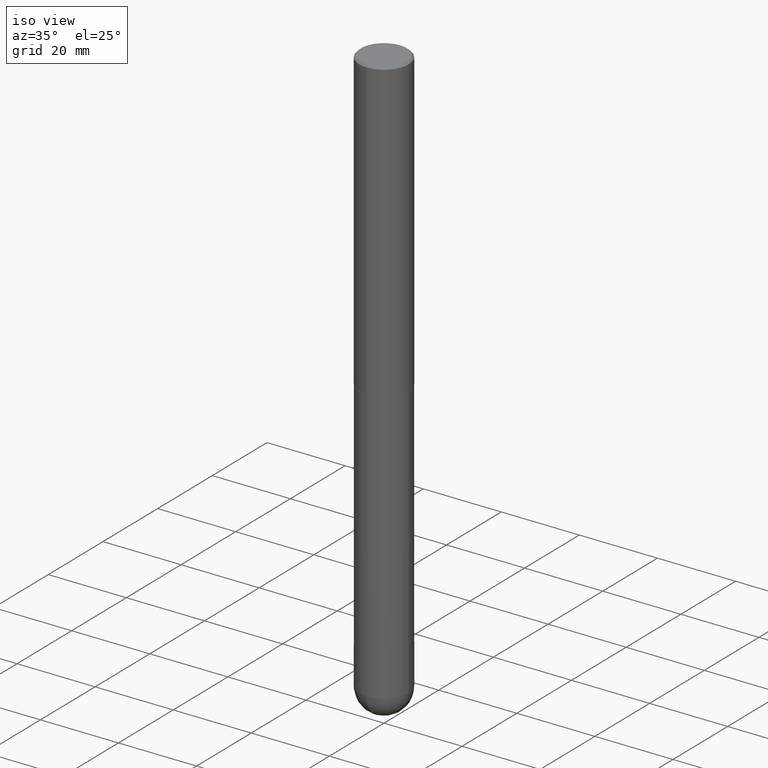
[diagram: clean part render]
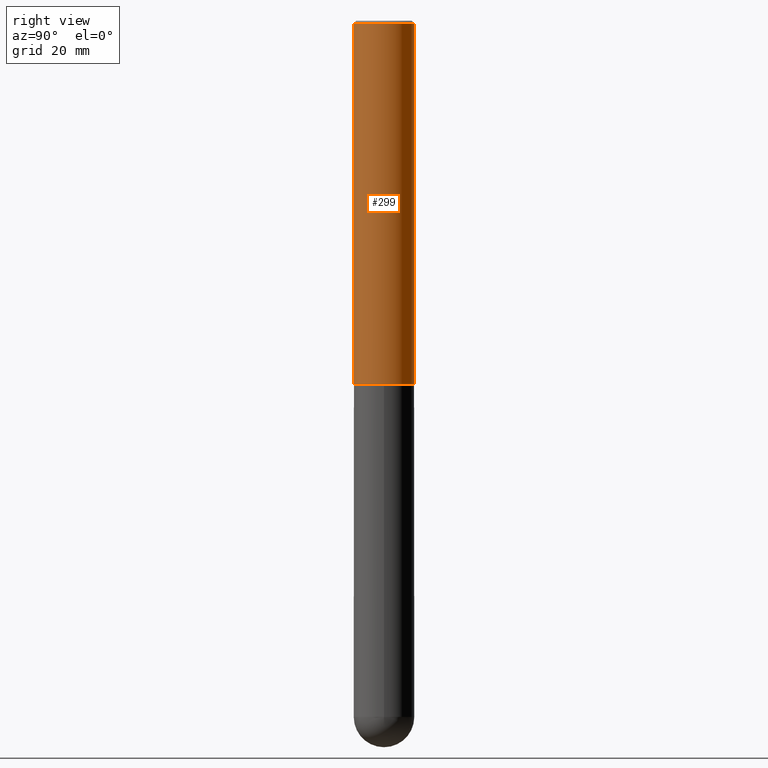
[diagram: tour spotlight — one face highlighted and labeled with its STEP entity id]
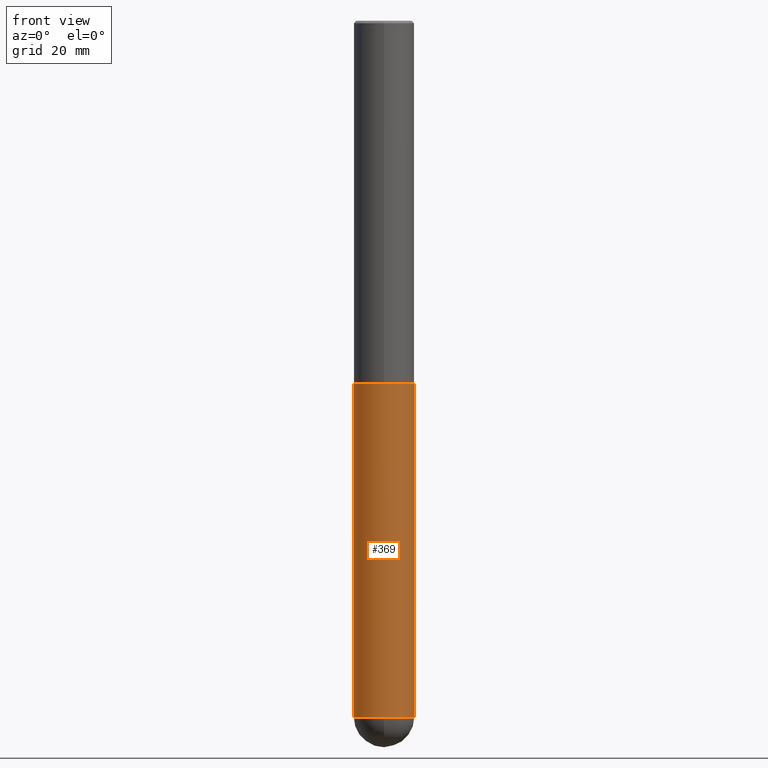
[diagram: tour spotlight — one face highlighted and labeled with its STEP entity id]
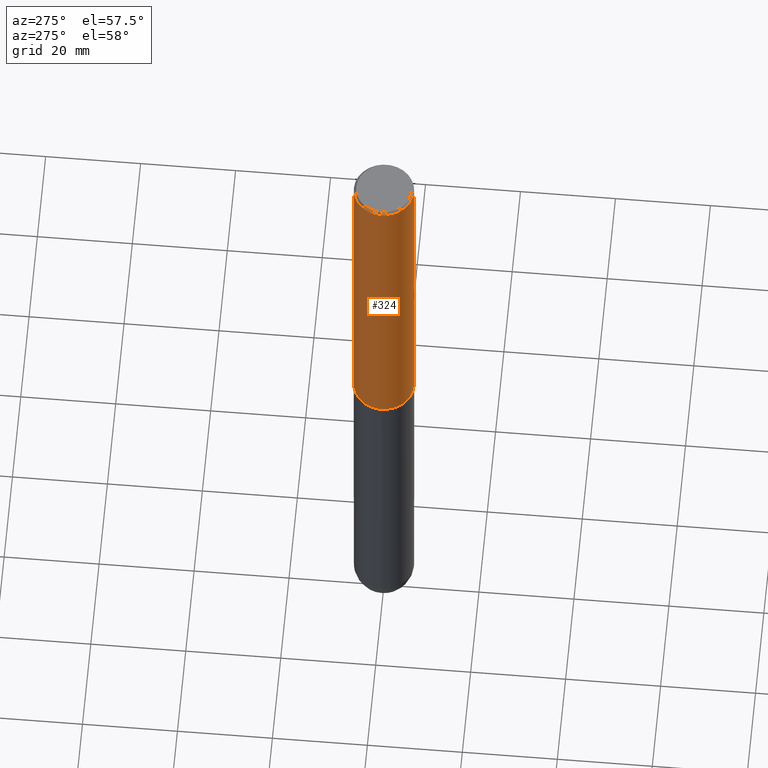
[diagram: tour spotlight — one face highlighted and labeled with its STEP entity id]
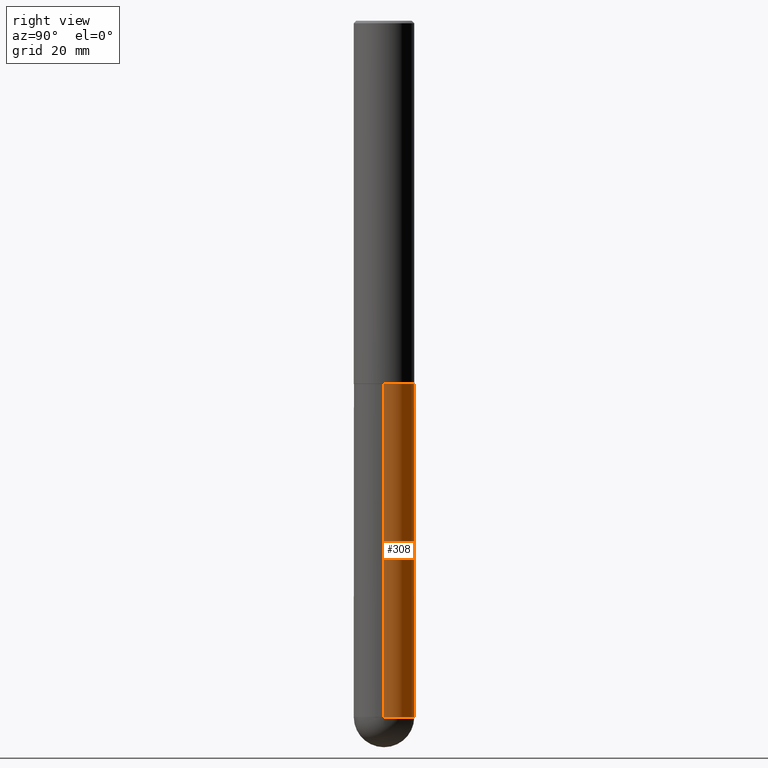
[diagram: tour spotlight — one face highlighted and labeled with its STEP entity id]
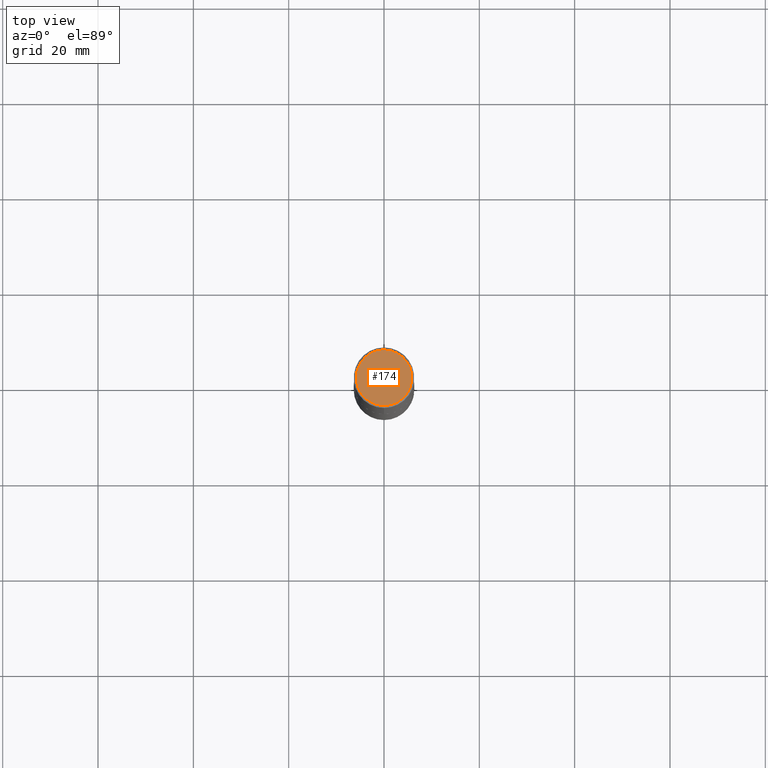
[diagram: tour spotlight — one face highlighted and labeled with its STEP entity id]
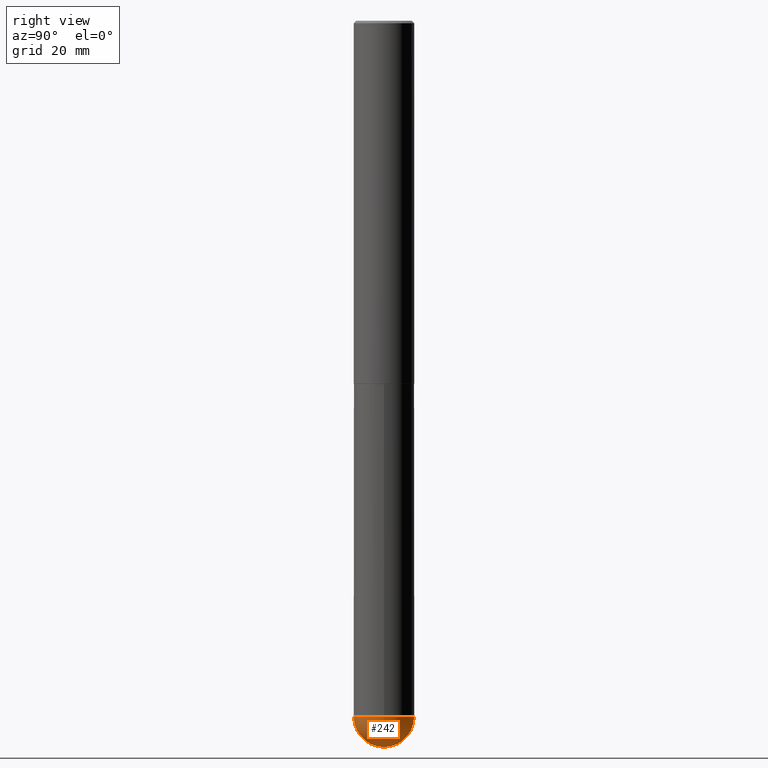
[diagram: tour spotlight — one face highlighted and labeled with its STEP entity id]
A machine part: a face-by-face anatomy tour. The part has 13 B-rep faces; the first image is the clean iso view, then the 6 largest visible faces are spotlighted one at a time (largest first), each with its STEP entity span.

Face 1 — right view, entity #299. In plain terms, the highlighted cylindrical surface (edge-blend (fillet) strip) has radius 6.35 mm, axis along (-0, 0, 1).
Definition (entity closure, byte-faithful):
#9 = VERTEX_POINT ( 'NONE', #234 ) ;
#15 = DIRECTION ( 'NONE',  ( -2.445032266171692161E-29, 3.492106488988713156E-15, 1.000000000000000000 ) ) ;
#32 = LINE ( 'NONE', #95, #240 ) ;
#38 = DIRECTION ( 'NONE',  ( -6.982962677686265922E-15, -1.000000000000000000, 4.370956789862815627E-15 ) ) ;
#49 = CIRCLE ( 'NONE', #93, 0.2500000000000003331 ) ;
#56 = CARTESIAN_POINT ( 'NONE',  ( -1.745740669421567664E-15, -0.2500000000000001665, 8.730266222471788808E-16 ) ) ;
#71 = DIRECTION ( 'NONE',  ( -6.982962677686265922E-15, -1.000000000000000000, 3.500180241882337261E-15 ) ) ;
#76 = DIRECTION ( 'NONE',  ( -2.445032266171691881E-29, 3.492106488988713156E-15, 1.000000000000000000 ) ) ;
#91 = DIRECTION ( 'NONE',  ( -2.445032266171691881E-29, 3.492106488988713156E-15, 1.000000000000000000 ) ) ;
#93 = AXIS2_PLACEMENT_3D ( 'NONE', #203, #322, #38 ) ;
#95 = CARTESIAN_POINT ( 'NONE',  ( 1.776356839400251254E-15, 0.2500000000000001665, -8.730266222471788808E-16 ) ) ;
#102 = VERTEX_POINT ( 'NONE', #159 ) ;
#114 = VECTOR ( 'NONE', #15, 39.37007874015748143 ) ;
#130 = DIRECTION ( 'NONE',  ( -2.445032266171692161E-29, 3.492106488988713156E-15, 1.000000000000000000 ) ) ;
#135 = ORIENTED_EDGE ( 'NONE', *, *, #279, .T. ) ;
#152 = ORIENTED_EDGE ( 'NONE', *, *, #270, .F. ) ;
#159 = CARTESIAN_POINT ( 'NONE',  ( 1.745740669421566875E-15, 0.2499999999999999167, -0.02000000000000093023 ) ) ;
#169 = CYLINDRICAL_SURFACE ( 'NONE', #215, 0.2500000000000001665 ) ;
#175 = DIRECTION ( 'NONE',  ( -6.982962677686265922E-15, -1.000000000000000000, 3.492106488988713156E-15 ) ) ;
#203 = CARTESIAN_POINT ( 'NONE',  ( 7.332651766248905611E-29, -1.047282736047715268E-14, -2.999000000000000554 ) ) ;
#215 = AXIS2_PLACEMENT_3D ( 'NONE', #388, #76, #175 ) ;
#230 = AXIS2_PLACEMENT_3D ( 'NONE', #377, #91, #71 ) ;
#234 = CARTESIAN_POINT ( 'NONE',  ( 1.776356839400289119E-15, 0.2499999999999898415, -2.999000000000001442 ) ) ;
#240 = VECTOR ( 'NONE', #130, 39.37007874015748143 ) ;
#257 = EDGE_LOOP ( 'NONE', ( #135, #334, #152, #394 ) ) ;
#263 = CIRCLE ( 'NONE', #230, 0.2500000000000000000 ) ;
#269 = FACE_OUTER_BOUND ( 'NONE', #257, .T. ) ;
#270 = EDGE_CURVE ( 'NONE', #315, #102, #263, .T. ) ;
#279 = EDGE_CURVE ( 'NONE', #399, #9, #49, .T. ) ;
#299 = ADVANCED_FACE ( 'NONE', ( #269 ), #169, .T. ) ;
#315 = VERTEX_POINT ( 'NONE', #361 ) ;
#322 = DIRECTION ( 'NONE',  ( -2.445032266171691881E-29, 3.492106488988713156E-15, 1.000000000000000000 ) ) ;
#334 = ORIENTED_EDGE ( 'NONE', *, *, #390, .T. ) ;
#337 = LINE ( 'NONE', #56, #114 ) ;
#361 = CARTESIAN_POINT ( 'NONE',  ( -1.715124499442882299E-15, -0.2500000000000000555, -0.01999999999999918163 ) ) ;
#377 = CARTESIAN_POINT ( 'NONE',  ( 4.890064532343397284E-31, -6.984212977977444358E-17, -0.02000000000000005593 ) ) ;
#388 = CARTESIAN_POINT ( 'NONE',  ( 0.000000000000000000, 0.000000000000000000, 0.000000000000000000 ) ) ;
#390 = EDGE_CURVE ( 'NONE', #9, #102, #32, .T. ) ;
#393 = EDGE_CURVE ( 'NONE', #399, #315, #337, .T. ) ;
#394 = ORIENTED_EDGE ( 'NONE', *, *, #393, .F. ) ;
#395 = CARTESIAN_POINT ( 'NONE',  ( -1.745740669421495680E-15, -0.2500000000000108247, -2.998999999999999222 ) ) ;
#399 = VERTEX_POINT ( 'NONE', #395 ) ;

Face 2 — front view, entity #369. In plain terms, the highlighted cylindrical surface (edge-blend (fillet) strip) has radius 6.35 mm, axis along (-0, 0, 1).
Definition (entity closure, byte-faithful):
#51 = DIRECTION ( 'NONE',  ( 1.000000000000000000, -6.982962677686266711E-15, 4.876176775795935793E-29 ) ) ;
#54 = EDGE_CURVE ( 'NONE', #195, #268, #305, .T. ) ;
#64 = AXIS2_PLACEMENT_3D ( 'NONE', #283, #92, #87 ) ;
#80 = DIRECTION ( 'NONE',  ( -2.445468806185136597E-29, 3.491481338843145583E-15, 1.000000000000000000 ) ) ;
#87 = DIRECTION ( 'NONE',  ( 1.000000000000000000, -6.982962677686262766E-15, 0.000000000000000000 ) ) ;
#92 = DIRECTION ( 'NONE',  ( -2.445468806185136597E-29, 3.491481338843145583E-15, 1.000000000000000000 ) ) ;
#107 = DIRECTION ( 'NONE',  ( -2.445468806185136597E-29, 3.491481338843145583E-15, 1.000000000000000000 ) ) ;
#109 = VERTEX_POINT ( 'NONE', #409 ) ;
#110 = CARTESIAN_POINT ( 'NONE',  ( 0.2500000000000000000, -1.745740669421566678E-15, 1.219044193948983948E-29 ) ) ;
#131 = EDGE_CURVE ( 'NONE', #268, #109, #332, .T. ) ;
#136 = CARTESIAN_POINT ( 'NONE',  ( 0.000000000000000000, 0.000000000000000000, 0.000000000000000000 ) ) ;
#139 = AXIS2_PLACEMENT_3D ( 'NONE', #391, #80, #207 ) ;
#154 = AXIS2_PLACEMENT_3D ( 'NONE', #136, #261, #51 ) ;
#162 = CYLINDRICAL_SURFACE ( 'NONE', #154, 0.2500000000000000000 ) ;
#173 = LINE ( 'NONE', #304, #314 ) ;
#178 = EDGE_CURVE ( 'NONE', #195, #312, #173, .T. ) ;
#193 = ORIENTED_EDGE ( 'NONE', *, *, #54, .T. ) ;
#195 = VERTEX_POINT ( 'NONE', #408 ) ;
#198 = ORIENTED_EDGE ( 'NONE', *, *, #290, .F. ) ;
#204 = DIRECTION ( 'NONE',  ( 1.000000000000000000, -6.982962677686262766E-15, 0.000000000000000000 ) ) ;
#205 = FACE_OUTER_BOUND ( 'NONE', #298, .T. ) ;
#207 = DIRECTION ( 'NONE',  ( 1.000000000000000000, -6.982962677686262766E-15, 0.000000000000000000 ) ) ;
#211 = CARTESIAN_POINT ( 'NONE',  ( -0.2500000000000000000, -1.349887401803851318E-14, -3.000000000000000444 ) ) ;
#220 = EDGE_CURVE ( 'NONE', #109, #344, #291, .T. ) ;
#229 = CARTESIAN_POINT ( 'NONE',  ( -1.776356839400113597E-15, -0.2500000000000206501, -5.750000000000000000 ) ) ;
#231 = DIRECTION ( 'NONE',  ( -2.445468806185136877E-29, 3.491481338843145188E-15, 1.000000000000000000 ) ) ;
#244 = CIRCLE ( 'NONE', #139, 0.2500000000000000000 ) ;
#252 = ORIENTED_EDGE ( 'NONE', *, *, #220, .T. ) ;
#254 = VECTOR ( 'NONE', #231, 39.37007874015748143 ) ;
#261 = DIRECTION ( 'NONE',  ( -2.445468806185136597E-29, 3.491481338843145583E-15, 1.000000000000000000 ) ) ;
#264 = ORIENTED_EDGE ( 'NONE', *, *, #178, .F. ) ;
#266 = DIRECTION ( 'NONE',  ( -2.445468806185136877E-29, 3.491481338843145188E-15, 1.000000000000000000 ) ) ;
#268 = VERTEX_POINT ( 'NONE', #229 ) ;
#283 = CARTESIAN_POINT ( 'NONE',  ( 1.406144563556453767E-28, -2.007601769834809252E-14, -5.750000000000000888 ) ) ;
#290 = EDGE_CURVE ( 'NONE', #312, #344, #244, .T. ) ;
#291 = LINE ( 'NONE', #110, #254 ) ;
#298 = EDGE_LOOP ( 'NONE', ( #264, #193, #403, #252, #198 ) ) ;
#304 = CARTESIAN_POINT ( 'NONE',  ( -0.2500000000000000000, 1.776356839400250465E-15, -1.229733772563726445E-29 ) ) ;
#305 = CIRCLE ( 'NONE', #64, 0.2500000000000000000 ) ;
#312 = VERTEX_POINT ( 'NONE', #211 ) ;
#314 = VECTOR ( 'NONE', #266, 39.37007874015748143 ) ;
#321 = CARTESIAN_POINT ( 'NONE',  ( 0.2500000000000000000, -1.222018468595100303E-14, -3.000000000000000444 ) ) ;
#327 = CARTESIAN_POINT ( 'NONE',  ( 1.406144563556453767E-28, -2.007601769834809252E-14, -5.750000000000000888 ) ) ;
#332 = CIRCLE ( 'NONE', #402, 0.2500000000000000000 ) ;
#344 = VERTEX_POINT ( 'NONE', #321 ) ;
#369 = ADVANCED_FACE ( 'NONE', ( #205 ), #162, .T. ) ;
#391 = CARTESIAN_POINT ( 'NONE',  ( 7.336406418555409790E-29, -1.047444401652943635E-14, -3.000000000000000444 ) ) ;
#402 = AXIS2_PLACEMENT_3D ( 'NONE', #327, #107, #204 ) ;
#403 = ORIENTED_EDGE ( 'NONE', *, *, #131, .T. ) ;
#408 = CARTESIAN_POINT ( 'NONE',  ( -0.2500000000000000000, -1.349887401803851318E-14, -5.750000000000000888 ) ) ;
#409 = CARTESIAN_POINT ( 'NONE',  ( 0.2500000000000000000, -1.702097152686033033E-14, -5.750000000000000888 ) ) ;

Face 3 — auxiliary view, entity #324. In plain terms, the highlighted cylindrical surface (edge-blend (fillet) strip) has radius 6.35 mm, axis along (-0, 0, 1).
Definition (entity closure, byte-faithful):
#9 = VERTEX_POINT ( 'NONE', #234 ) ;
#10 = DIRECTION ( 'NONE',  ( -2.445032266171691881E-29, 3.492106488988713156E-15, 1.000000000000000000 ) ) ;
#14 = ORIENTED_EDGE ( 'NONE', *, *, #390, .F. ) ;
#15 = DIRECTION ( 'NONE',  ( -2.445032266171692161E-29, 3.492106488988713156E-15, 1.000000000000000000 ) ) ;
#17 = CARTESIAN_POINT ( 'NONE',  ( 0.000000000000000000, 0.000000000000000000, 0.000000000000000000 ) ) ;
#32 = LINE ( 'NONE', #95, #240 ) ;
#41 = AXIS2_PLACEMENT_3D ( 'NONE', #357, #10, #239 ) ;
#47 = CARTESIAN_POINT ( 'NONE',  ( 7.332651766248905611E-29, -1.047282736047715268E-14, -2.999000000000000554 ) ) ;
#56 = CARTESIAN_POINT ( 'NONE',  ( -1.745740669421567664E-15, -0.2500000000000001665, 8.730266222471788808E-16 ) ) ;
#95 = CARTESIAN_POINT ( 'NONE',  ( 1.776356839400251254E-15, 0.2500000000000001665, -8.730266222471788808E-16 ) ) ;
#102 = VERTEX_POINT ( 'NONE', #159 ) ;
#105 = CIRCLE ( 'NONE', #288, 0.2500000000000003331 ) ;
#114 = VECTOR ( 'NONE', #15, 39.37007874015748143 ) ;
#120 = EDGE_LOOP ( 'NONE', ( #14, #140, #292, #191 ) ) ;
#130 = DIRECTION ( 'NONE',  ( -2.445032266171692161E-29, 3.492106488988713156E-15, 1.000000000000000000 ) ) ;
#140 = ORIENTED_EDGE ( 'NONE', *, *, #318, .T. ) ;
#146 = DIRECTION ( 'NONE',  ( -2.445032266171691881E-29, 3.492106488988713156E-15, 1.000000000000000000 ) ) ;
#159 = CARTESIAN_POINT ( 'NONE',  ( 1.745740669421566875E-15, 0.2499999999999999167, -0.02000000000000093023 ) ) ;
#172 = DIRECTION ( 'NONE',  ( -6.982962677686265922E-15, -1.000000000000000000, 4.370956789862815627E-15 ) ) ;
#183 = AXIS2_PLACEMENT_3D ( 'NONE', #17, #146, #262 ) ;
#191 = ORIENTED_EDGE ( 'NONE', *, *, #237, .F. ) ;
#234 = CARTESIAN_POINT ( 'NONE',  ( 1.776356839400289119E-15, 0.2499999999999898415, -2.999000000000001442 ) ) ;
#237 = EDGE_CURVE ( 'NONE', #102, #315, #372, .T. ) ;
#239 = DIRECTION ( 'NONE',  ( -6.982962677686265922E-15, -1.000000000000000000, 3.500180241882337261E-15 ) ) ;
#240 = VECTOR ( 'NONE', #130, 39.37007874015748143 ) ;
#262 = DIRECTION ( 'NONE',  ( -6.982962677686265922E-15, -1.000000000000000000, 3.492106488988713156E-15 ) ) ;
#288 = AXIS2_PLACEMENT_3D ( 'NONE', #47, #303, #172 ) ;
#292 = ORIENTED_EDGE ( 'NONE', *, *, #393, .T. ) ;
#303 = DIRECTION ( 'NONE',  ( -2.445032266171691881E-29, 3.492106488988713156E-15, 1.000000000000000000 ) ) ;
#315 = VERTEX_POINT ( 'NONE', #361 ) ;
#318 = EDGE_CURVE ( 'NONE', #9, #399, #105, .T. ) ;
#324 = ADVANCED_FACE ( 'NONE', ( #386 ), #330, .T. ) ;
#330 = CYLINDRICAL_SURFACE ( 'NONE', #183, 0.2500000000000001665 ) ;
#337 = LINE ( 'NONE', #56, #114 ) ;
#357 = CARTESIAN_POINT ( 'NONE',  ( 4.890064532343397284E-31, -6.984212977977444358E-17, -0.02000000000000005593 ) ) ;
#361 = CARTESIAN_POINT ( 'NONE',  ( -1.715124499442882299E-15, -0.2500000000000000555, -0.01999999999999918163 ) ) ;
#372 = CIRCLE ( 'NONE', #41, 0.2500000000000000000 ) ;
#386 = FACE_OUTER_BOUND ( 'NONE', #120, .T. ) ;
#390 = EDGE_CURVE ( 'NONE', #9, #102, #32, .T. ) ;
#393 = EDGE_CURVE ( 'NONE', #399, #315, #337, .T. ) ;
#395 = CARTESIAN_POINT ( 'NONE',  ( -1.745740669421495680E-15, -0.2500000000000108247, -2.998999999999999222 ) ) ;
#399 = VERTEX_POINT ( 'NONE', #395 ) ;

Face 4 — right view, entity #308. In plain terms, the highlighted cylindrical surface (edge-blend (fillet) strip) has radius 6.35 mm, axis along (-0, 0, 1).
Definition (entity closure, byte-faithful):
#2 = DIRECTION ( 'NONE',  ( 1.000000000000000000, -6.982962677686262766E-15, 0.000000000000000000 ) ) ;
#16 = DIRECTION ( 'NONE',  ( 1.000000000000000000, -6.982962677686266711E-15, 4.876176775795935793E-29 ) ) ;
#24 = CIRCLE ( 'NONE', #326, 0.2500000000000000000 ) ;
#26 = EDGE_CURVE ( 'NONE', #344, #312, #53, .T. ) ;
#40 = DIRECTION ( 'NONE',  ( -2.445468806185136597E-29, 3.491481338843145583E-15, 1.000000000000000000 ) ) ;
#53 = CIRCLE ( 'NONE', #210, 0.2500000000000000000 ) ;
#65 = ORIENTED_EDGE ( 'NONE', *, *, #220, .F. ) ;
#77 = AXIS2_PLACEMENT_3D ( 'NONE', #213, #165, #16 ) ;
#88 = ORIENTED_EDGE ( 'NONE', *, *, #366, .T. ) ;
#90 = ORIENTED_EDGE ( 'NONE', *, *, #178, .T. ) ;
#109 = VERTEX_POINT ( 'NONE', #409 ) ;
#110 = CARTESIAN_POINT ( 'NONE',  ( 0.2500000000000000000, -1.745740669421566678E-15, 1.219044193948983948E-29 ) ) ;
#111 = FACE_OUTER_BOUND ( 'NONE', #325, .T. ) ;
#141 = CYLINDRICAL_SURFACE ( 'NONE', #77, 0.2500000000000000000 ) ;
#147 = CARTESIAN_POINT ( 'NONE',  ( 1.745740669421707884E-15, 0.2499999999999800160, -5.750000000000001776 ) ) ;
#158 = CARTESIAN_POINT ( 'NONE',  ( 1.406144563556453767E-28, -2.007601769834809252E-14, -5.750000000000000888 ) ) ;
#165 = DIRECTION ( 'NONE',  ( -2.445468806185136597E-29, 3.491481338843145583E-15, 1.000000000000000000 ) ) ;
#173 = LINE ( 'NONE', #304, #314 ) ;
#178 = EDGE_CURVE ( 'NONE', #195, #312, #173, .T. ) ;
#194 = EDGE_CURVE ( 'NONE', #109, #397, #24, .T. ) ;
#195 = VERTEX_POINT ( 'NONE', #408 ) ;
#210 = AXIS2_PLACEMENT_3D ( 'NONE', #346, #378, #248 ) ;
#211 = CARTESIAN_POINT ( 'NONE',  ( -0.2500000000000000000, -1.349887401803851318E-14, -3.000000000000000444 ) ) ;
#213 = CARTESIAN_POINT ( 'NONE',  ( 0.000000000000000000, 0.000000000000000000, 0.000000000000000000 ) ) ;
#220 = EDGE_CURVE ( 'NONE', #109, #344, #291, .T. ) ;
#231 = DIRECTION ( 'NONE',  ( -2.445468806185136877E-29, 3.491481338843145188E-15, 1.000000000000000000 ) ) ;
#232 = CIRCLE ( 'NONE', #333, 0.2500000000000000000 ) ;
#248 = DIRECTION ( 'NONE',  ( 1.000000000000000000, -6.982962677686262766E-15, 0.000000000000000000 ) ) ;
#254 = VECTOR ( 'NONE', #231, 39.37007874015748143 ) ;
#266 = DIRECTION ( 'NONE',  ( -2.445468806185136877E-29, 3.491481338843145188E-15, 1.000000000000000000 ) ) ;
#273 = ORIENTED_EDGE ( 'NONE', *, *, #26, .F. ) ;
#285 = DIRECTION ( 'NONE',  ( 1.000000000000000000, -6.982962677686262766E-15, 0.000000000000000000 ) ) ;
#291 = LINE ( 'NONE', #110, #254 ) ;
#304 = CARTESIAN_POINT ( 'NONE',  ( -0.2500000000000000000, 1.776356839400250465E-15, -1.229733772563726445E-29 ) ) ;
#308 = ADVANCED_FACE ( 'NONE', ( #111 ), #141, .T. ) ;
#312 = VERTEX_POINT ( 'NONE', #211 ) ;
#314 = VECTOR ( 'NONE', #266, 39.37007874015748143 ) ;
#321 = CARTESIAN_POINT ( 'NONE',  ( 0.2500000000000000000, -1.222018468595100303E-14, -3.000000000000000444 ) ) ;
#325 = EDGE_LOOP ( 'NONE', ( #88, #90, #273, #65, #352 ) ) ;
#326 = AXIS2_PLACEMENT_3D ( 'NONE', #158, #339, #285 ) ;
#333 = AXIS2_PLACEMENT_3D ( 'NONE', #389, #40, #2 ) ;
#339 = DIRECTION ( 'NONE',  ( -2.445468806185136597E-29, 3.491481338843145583E-15, 1.000000000000000000 ) ) ;
#344 = VERTEX_POINT ( 'NONE', #321 ) ;
#346 = CARTESIAN_POINT ( 'NONE',  ( 7.336406418555409790E-29, -1.047444401652943635E-14, -3.000000000000000444 ) ) ;
#352 = ORIENTED_EDGE ( 'NONE', *, *, #194, .T. ) ;
#366 = EDGE_CURVE ( 'NONE', #397, #195, #232, .T. ) ;
#378 = DIRECTION ( 'NONE',  ( -2.445468806185136597E-29, 3.491481338843145583E-15, 1.000000000000000000 ) ) ;
#389 = CARTESIAN_POINT ( 'NONE',  ( 1.406144563556453767E-28, -2.007601769834809252E-14, -5.750000000000000888 ) ) ;
#397 = VERTEX_POINT ( 'NONE', #147 ) ;
#408 = CARTESIAN_POINT ( 'NONE',  ( -0.2500000000000000000, -1.349887401803851318E-14, -5.750000000000000888 ) ) ;
#409 = CARTESIAN_POINT ( 'NONE',  ( 0.2500000000000000000, -1.702097152686033033E-14, -5.750000000000000888 ) ) ;

Face 5 — top view, entity #174. In plain terms, the highlighted planar face has unit normal (0, -0, -1).
Definition (entity closure, byte-faithful):
#23 = CARTESIAN_POINT ( 'NONE',  ( 3.047150466097158417E-44, -4.352079137280249131E-30, -1.246261862575839629E-15 ) ) ;
#33 = DIRECTION ( 'NONE',  ( -2.445032266171691881E-29, 3.492106488988713156E-15, 1.000000000000000000 ) ) ;
#75 = EDGE_CURVE ( 'NONE', #180, #265, #113, .T. ) ;
#78 = CARTESIAN_POINT ( 'NONE',  ( 1.606081415867849745E-15, 0.2300000000000012312, -1.426315423755327875E-15 ) ) ;
#85 = CARTESIAN_POINT ( 'NONE',  ( -1.646519519465171306E-15, -0.2300000000000012312, -4.430773701084313213E-16 ) ) ;
#98 = CARTESIAN_POINT ( 'NONE',  ( 1.675911042644708310E-15, 0.2300000000000012312, -2.049446355043247788E-15 ) ) ;
#113 = CIRCLE ( 'NONE', #209, 0.2300000000000012312 ) ;
#117 = AXIS2_PLACEMENT_3D ( 'NONE', #23, #345, #348 ) ;
#143 = AXIS2_PLACEMENT_3D ( 'NONE', #78, #212, #329 ) ;
#174 = ADVANCED_FACE ( 'NONE', ( #364 ), #358, .F. ) ;
#180 = VERTEX_POINT ( 'NONE', #85 ) ;
#185 = EDGE_LOOP ( 'NONE', ( #271, #217 ) ) ;
#209 = AXIS2_PLACEMENT_3D ( 'NONE', #406, #33, #340 ) ;
#212 = DIRECTION ( 'NONE',  ( 2.445032266171691320E-29, -3.492106488988713156E-15, -1.000000000000000000 ) ) ;
#217 = ORIENTED_EDGE ( 'NONE', *, *, #75, .T. ) ;
#265 = VERTEX_POINT ( 'NONE', #98 ) ;
#271 = ORIENTED_EDGE ( 'NONE', *, *, #383, .T. ) ;
#329 = DIRECTION ( 'NONE',  ( 6.982962677686265922E-15, 1.000000000000000000, -3.492106488988713156E-15 ) ) ;
#340 = DIRECTION ( 'NONE',  ( -6.982962677686265922E-15, -1.000000000000000000, 3.492106488988712762E-15 ) ) ;
#345 = DIRECTION ( 'NONE',  ( -2.445032266171691881E-29, 3.492106488988713156E-15, 1.000000000000000000 ) ) ;
#348 = DIRECTION ( 'NONE',  ( -6.982962677686265922E-15, -1.000000000000000000, 3.492106488988712762E-15 ) ) ;
#358 = PLANE ( 'NONE',  #143 ) ;
#364 = FACE_OUTER_BOUND ( 'NONE', #185, .T. ) ;
#383 = EDGE_CURVE ( 'NONE', #265, #180, #387, .T. ) ;
#387 = CIRCLE ( 'NONE', #117, 0.2300000000000012312 ) ;
#406 = CARTESIAN_POINT ( 'NONE',  ( 3.047150466097158417E-44, -4.352079137280249131E-30, -1.246261862575839629E-15 ) ) ;

Face 6 — right view, entity #242. In plain terms, the highlighted spherical surface has radius 6.35 mm.
Definition (entity closure, byte-faithful):
#18 = CIRCLE ( 'NONE', #86, 0.2500000000000006661 ) ;
#24 = CIRCLE ( 'NONE', #326, 0.2500000000000000000 ) ;
#29 = CIRCLE ( 'NONE', #168, 0.2500000000000006661 ) ;
#42 = DIRECTION ( 'NONE',  ( 1.000000000000000000, -6.982962677686265922E-15, 4.883557194083112340E-29 ) ) ;
#52 = ORIENTED_EDGE ( 'NONE', *, *, #194, .F. ) ;
#69 = SPHERICAL_SURFACE ( 'NONE', #249, 0.2500000000000006661 ) ;
#74 = ORIENTED_EDGE ( 'NONE', *, *, #313, .T. ) ;
#86 = AXIS2_PLACEMENT_3D ( 'NONE', #233, #170, #112 ) ;
#107 = DIRECTION ( 'NONE',  ( -2.445468806185136597E-29, 3.491481338843145583E-15, 1.000000000000000000 ) ) ;
#109 = VERTEX_POINT ( 'NONE', #409 ) ;
#112 = DIRECTION ( 'NONE',  ( -7.105427357601001859E-15, -1.000000000000000000, 0.000000000000000000 ) ) ;
#131 = EDGE_CURVE ( 'NONE', #268, #109, #332, .T. ) ;
#137 = CARTESIAN_POINT ( 'NONE',  ( 1.373032585765065255E-28, -2.055020006648814124E-14, -5.750000000000000888 ) ) ;
#147 = CARTESIAN_POINT ( 'NONE',  ( 1.745740669421707884E-15, 0.2499999999999800160, -5.750000000000001776 ) ) ;
#149 = CARTESIAN_POINT ( 'NONE',  ( 1.435238263781167989E-28, -2.140776231620958900E-14, -6.000000000000001776 ) ) ;
#158 = CARTESIAN_POINT ( 'NONE',  ( 1.406144563556453767E-28, -2.007601769834809252E-14, -5.750000000000000888 ) ) ;
#164 = EDGE_CURVE ( 'NONE', #371, #268, #18, .T. ) ;
#168 = AXIS2_PLACEMENT_3D ( 'NONE', #137, #42, #328 ) ;
#170 = DIRECTION ( 'NONE',  ( -1.000000000000000000, 7.105427357601001070E-15, -4.926315508542082329E-29 ) ) ;
#188 = DIRECTION ( 'NONE',  ( -1.000000000000000000, 6.982962677686265922E-15, -4.883557194083112340E-29 ) ) ;
#194 = EDGE_CURVE ( 'NONE', #109, #397, #24, .T. ) ;
#204 = DIRECTION ( 'NONE',  ( 1.000000000000000000, -6.982962677686262766E-15, 0.000000000000000000 ) ) ;
#229 = CARTESIAN_POINT ( 'NONE',  ( -1.776356839400113597E-15, -0.2500000000000206501, -5.750000000000000000 ) ) ;
#233 = CARTESIAN_POINT ( 'NONE',  ( 1.373032585765065255E-28, -2.055020006648814124E-14, -5.750000000000000888 ) ) ;
#242 = ADVANCED_FACE ( 'NONE', ( #362 ), #69, .T. ) ;
#249 = AXIS2_PLACEMENT_3D ( 'NONE', #255, #188, #259 ) ;
#255 = CARTESIAN_POINT ( 'NONE',  ( 1.373032585765065255E-28, -2.055020006648814124E-14, -5.750000000000000888 ) ) ;
#259 = DIRECTION ( 'NONE',  ( 6.982962677686265922E-15, 1.000000000000000000, -4.370956789862809317E-15 ) ) ;
#268 = VERTEX_POINT ( 'NONE', #229 ) ;
#285 = DIRECTION ( 'NONE',  ( 1.000000000000000000, -6.982962677686262766E-15, 0.000000000000000000 ) ) ;
#309 = ORIENTED_EDGE ( 'NONE', *, *, #131, .F. ) ;
#313 = EDGE_CURVE ( 'NONE', #371, #397, #29, .T. ) ;
#326 = AXIS2_PLACEMENT_3D ( 'NONE', #158, #339, #285 ) ;
#327 = CARTESIAN_POINT ( 'NONE',  ( 1.406144563556453767E-28, -2.007601769834809252E-14, -5.750000000000000888 ) ) ;
#328 = DIRECTION ( 'NONE',  ( 6.982962677686266711E-15, 1.000000000000000000, 0.000000000000000000 ) ) ;
#332 = CIRCLE ( 'NONE', #402, 0.2500000000000000000 ) ;
#339 = DIRECTION ( 'NONE',  ( -2.445468806185136597E-29, 3.491481338843145583E-15, 1.000000000000000000 ) ) ;
#353 = EDGE_LOOP ( 'NONE', ( #365, #74, #52, #309 ) ) ;
#362 = FACE_OUTER_BOUND ( 'NONE', #353, .T. ) ;
#365 = ORIENTED_EDGE ( 'NONE', *, *, #164, .F. ) ;
#371 = VERTEX_POINT ( 'NONE', #149 ) ;
#397 = VERTEX_POINT ( 'NONE', #147 ) ;
#402 = AXIS2_PLACEMENT_3D ( 'NONE', #327, #107, #204 ) ;
#409 = CARTESIAN_POINT ( 'NONE',  ( 0.2500000000000000000, -1.702097152686033033E-14, -5.750000000000000888 ) ) ;